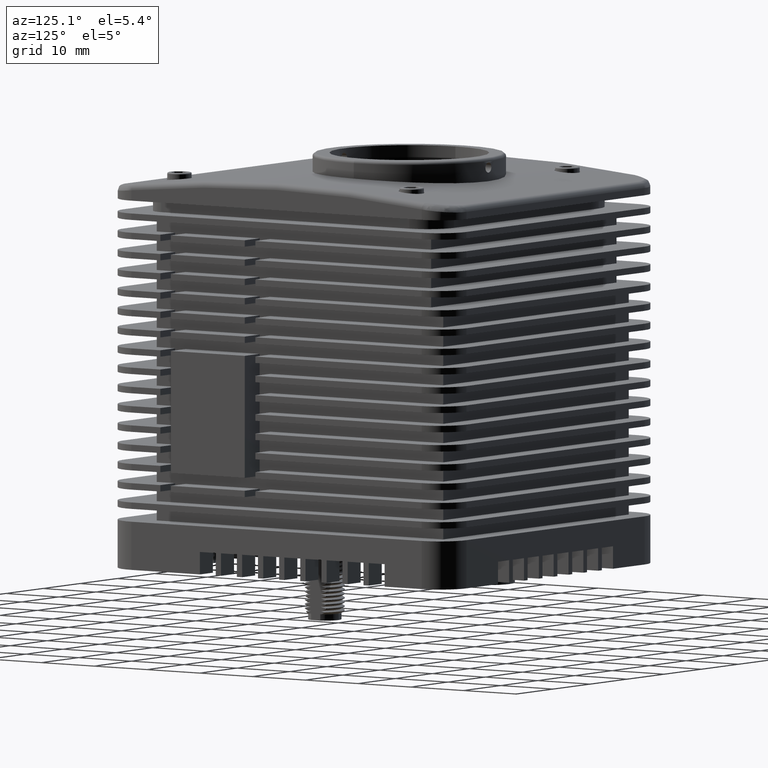
[diagram: clean part render]
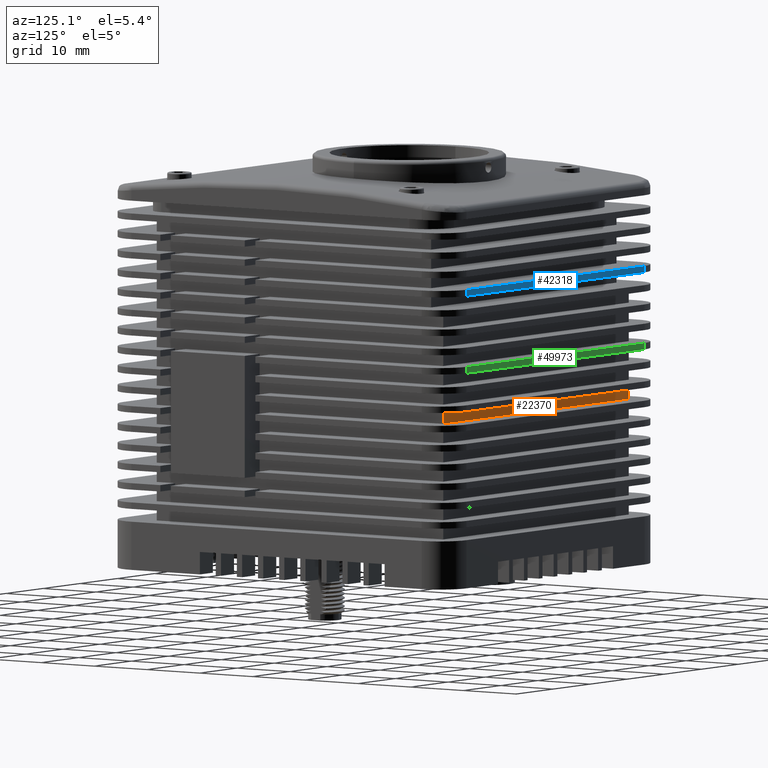
[diagram: same view with three faces highlighted in distinct colors, each labeled with its STEP entity id]
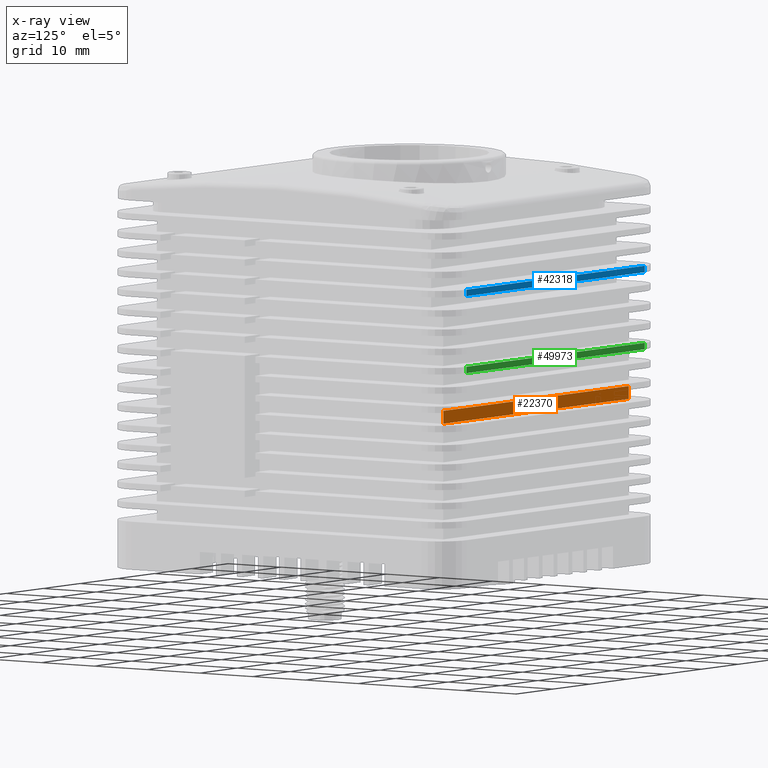
[diagram: x-ray of the same camera — body ghosted, the three highlighted faces saturated]
A machine part, auxiliary view with three faces highlighted in distinct colors.
The next image is the same camera in x-ray (body ghosted, the three faces saturated) — at least one of them is partly hidden behind the body in this view.
Their STEP definitions:

[orange] entity #22370 — the highlighted planar face has unit normal (0, -1, 0).
#2314 = ORIENTED_EDGE ( 'NONE', *, *, #32692, .T. ) ;
#2422 = DIRECTION ( 'NONE',  ( -0.0000000000000000000, -0.0000000000000000000, -1.000000000000000000 ) ) ;
#5288 = DIRECTION ( 'NONE',  ( 0.0000000000000000000, -0.0000000000000000000, -1.000000000000000000 ) ) ;
#6285 = CARTESIAN_POINT ( 'NONE',  ( 25.00000000000001800, 28.80000000000000100, 24.00000000000000000 ) ) ;
#8824 = VERTEX_POINT ( 'NONE', #38930 ) ;
#12756 = LINE ( 'NONE', #31363, #53727 ) ;
#18141 = VECTOR ( 'NONE', #39761, 1000.000000000000000 ) ;
#18844 = LINE ( 'NONE', #66563, #50625 ) ;
#20713 = VERTEX_POINT ( 'NONE', #6285 ) ;
#22370 = ADVANCED_FACE ( 'NONE', ( #61967 ), #69412, .F. ) ;
#27087 = CARTESIAN_POINT ( 'NONE',  ( 25.00000000000001800, 28.80000000000000100, 26.00000000000000400 ) ) ;
#28438 = AXIS2_PLACEMENT_3D ( 'NONE', #32032, #37396, #5288 ) ;
#29760 = VECTOR ( 'NONE', #32481, 1000.000000000000000 ) ;
#31363 = CARTESIAN_POINT ( 'NONE',  ( -25.00000000000000400, 28.80000000000000100, 26.00000000000000400 ) ) ;
#32032 = CARTESIAN_POINT ( 'NONE',  ( 25.00000000000001800, 28.80000000000000100, 26.00000000000000400 ) ) ;
#32481 = DIRECTION ( 'NONE',  ( -1.000000000000000000, 0.0000000000000000000, 0.0000000000000000000 ) ) ;
#32692 = EDGE_CURVE ( 'NONE', #20713, #63015, #35730, .T. ) ;
#33621 = EDGE_LOOP ( 'NONE', ( #2314, #42924, #38994, #54147 ) ) ;
#35730 = LINE ( 'NONE', #60997, #18141 ) ;
#36532 = EDGE_CURVE ( 'NONE', #8824, #63015, #12756, .T. ) ;
#37396 = DIRECTION ( 'NONE',  ( 0.0000000000000000000, -1.000000000000000000, 0.0000000000000000000 ) ) ;
#38930 = CARTESIAN_POINT ( 'NONE',  ( -25.00000000000000400, 28.80000000000000100, 26.00000000000000400 ) ) ;
#38994 = ORIENTED_EDGE ( 'NONE', *, *, #46416, .F. ) ;
#39761 = DIRECTION ( 'NONE',  ( -1.000000000000000000, 0.0000000000000000000, 0.0000000000000000000 ) ) ;
#42924 = ORIENTED_EDGE ( 'NONE', *, *, #36532, .F. ) ;
#43977 = LINE ( 'NONE', #27087, #29760 ) ;
#46416 = EDGE_CURVE ( 'NONE', #63627, #8824, #43977, .T. ) ;
#50625 = VECTOR ( 'NONE', #2422, 1000.000000000000000 ) ;
#52811 = DIRECTION ( 'NONE',  ( -0.0000000000000000000, -0.0000000000000000000, -1.000000000000000000 ) ) ;
#53727 = VECTOR ( 'NONE', #52811, 1000.000000000000000 ) ;
#54147 = ORIENTED_EDGE ( 'NONE', *, *, #57313, .T. ) ;
#56570 = CARTESIAN_POINT ( 'NONE',  ( 25.00000000000001800, 28.80000000000000100, 26.00000000000000400 ) ) ;
#57313 = EDGE_CURVE ( 'NONE', #63627, #20713, #18844, .T. ) ;
#60997 = CARTESIAN_POINT ( 'NONE',  ( 25.00000000000001800, 28.80000000000000100, 24.00000000000000000 ) ) ;
#61967 = FACE_OUTER_BOUND ( 'NONE', #33621, .T. ) ;
#63015 = VERTEX_POINT ( 'NONE', #67181 ) ;
#63627 = VERTEX_POINT ( 'NONE', #56570 ) ;
#66563 = CARTESIAN_POINT ( 'NONE',  ( 25.00000000000001800, 28.80000000000000100, 26.00000000000000400 ) ) ;
#67181 = CARTESIAN_POINT ( 'NONE',  ( -25.00000000000000400, 28.80000000000000100, 24.00000000000000000 ) ) ;
#69412 = PLANE ( 'NONE',  #28438 ) ;

[blue] entity #42318 — the highlighted planar face has unit normal (0, -1, 0).
#234 = EDGE_CURVE ( 'NONE', #68683, #5638, #42662, .T. ) ;
#271 = CARTESIAN_POINT ( 'NONE',  ( 23.99999999999996100, 32.50000000000000000, 30.00000000000000000 ) ) ;
#4256 = DIRECTION ( 'NONE',  ( 0.0000000000000000000, -1.000000000000000000, 0.0000000000000000000 ) ) ;
#5638 = VERTEX_POINT ( 'NONE', #66542 ) ;
#5922 = ORIENTED_EDGE ( 'NONE', *, *, #39736, .T. ) ;
#9149 = EDGE_CURVE ( 'NONE', #44064, #5638, #30898, .T. ) ;
#14163 = VECTOR ( 'NONE', #48862, 1000.000000000000000 ) ;
#15933 = LINE ( 'NONE', #271, #41008 ) ;
#15955 = ORIENTED_EDGE ( 'NONE', *, *, #9149, .F. ) ;
#16643 = VECTOR ( 'NONE', #58915, 1000.000000000000000 ) ;
#18994 = ORIENTED_EDGE ( 'NONE', *, *, #53813, .T. ) ;
#25665 = PLANE ( 'NONE',  #51626 ) ;
#29113 = ORIENTED_EDGE ( 'NONE', *, *, #234, .T. ) ;
#30898 = LINE ( 'NONE', #42873, #16643 ) ;
#33738 = DIRECTION ( 'NONE',  ( 1.000000000000000000, 0.0000000000000000000, 0.0000000000000000000 ) ) ;
#35100 = FACE_OUTER_BOUND ( 'NONE', #68106, .T. ) ;
#36380 = CARTESIAN_POINT ( 'NONE',  ( -23.99999999999996800, 32.50000000000000000, 30.00000000000000000 ) ) ;
#37751 = DIRECTION ( 'NONE',  ( -0.0000000000000000000, -0.0000000000000000000, -1.000000000000000000 ) ) ;
#37882 = CARTESIAN_POINT ( 'NONE',  ( -23.99999999999996800, 32.50000000000000000, 13.49999999999999800 ) ) ;
#39648 = VERTEX_POINT ( 'NONE', #58690 ) ;
#39736 = EDGE_CURVE ( 'NONE', #44064, #39648, #46316, .T. ) ;
#41008 = VECTOR ( 'NONE', #37751, 1000.000000000000000 ) ;
#41774 = DIRECTION ( 'NONE',  ( 0.0000000000000000000, -0.0000000000000000000, -1.000000000000000000 ) ) ;
#42318 = ADVANCED_FACE ( 'NONE', ( #35100 ), #25665, .F. ) ;
#42662 = LINE ( 'NONE', #37882, #14163 ) ;
#42873 = CARTESIAN_POINT ( 'NONE',  ( -23.99999999999996800, 32.50000000000000000, 30.00000000000000000 ) ) ;
#44064 = VERTEX_POINT ( 'NONE', #68320 ) ;
#44625 = VECTOR ( 'NONE', #33738, 1000.000000000000000 ) ;
#46316 = LINE ( 'NONE', #49620, #44625 ) ;
#48862 = DIRECTION ( 'NONE',  ( -1.000000000000000000, 0.0000000000000000000, 0.0000000000000000000 ) ) ;
#49620 = CARTESIAN_POINT ( 'NONE',  ( -23.99999999999996800, 32.50000000000000000, 14.49999999999999500 ) ) ;
#51626 = AXIS2_PLACEMENT_3D ( 'NONE', #36380, #4256, #41774 ) ;
#52285 = CARTESIAN_POINT ( 'NONE',  ( 23.99999999999996100, 32.50000000000000000, 13.49999999999999800 ) ) ;
#53813 = EDGE_CURVE ( 'NONE', #39648, #68683, #15933, .T. ) ;
#58690 = CARTESIAN_POINT ( 'NONE',  ( 23.99999999999996100, 32.50000000000000000, 14.49999999999999500 ) ) ;
#58915 = DIRECTION ( 'NONE',  ( -0.0000000000000000000, -0.0000000000000000000, -1.000000000000000000 ) ) ;
#66542 = CARTESIAN_POINT ( 'NONE',  ( -23.99999999999996800, 32.50000000000000000, 13.49999999999999800 ) ) ;
#68106 = EDGE_LOOP ( 'NONE', ( #18994, #29113, #15955, #5922 ) ) ;
#68320 = CARTESIAN_POINT ( 'NONE',  ( -23.99999999999996800, 32.50000000000000000, 14.49999999999999500 ) ) ;
#68683 = VERTEX_POINT ( 'NONE', #52285 ) ;

[green] entity #49973 — the highlighted planar face has unit normal (0, -1, 0).
#5928 = EDGE_CURVE ( 'NONE', #49986, #6804, #28627, .T. ) ;
#6804 = VERTEX_POINT ( 'NONE', #54061 ) ;
#7006 = CARTESIAN_POINT ( 'NONE',  ( -23.99999999999999600, 32.50000000000000000, 47.50000000000000000 ) ) ;
#9251 = CARTESIAN_POINT ( 'NONE',  ( -23.99999999999999600, 32.50000000000000000, 47.50000000000000000 ) ) ;
#12417 = DIRECTION ( 'NONE',  ( 0.0000000000000000000, -0.0000000000000000000, -1.000000000000000000 ) ) ;
#13467 = DIRECTION ( 'NONE',  ( 1.000000000000000000, 0.0000000000000000000, 0.0000000000000000000 ) ) ;
#15842 = ORIENTED_EDGE ( 'NONE', *, *, #60250, .F. ) ;
#20114 = ORIENTED_EDGE ( 'NONE', *, *, #5928, .F. ) ;
#21412 = FACE_OUTER_BOUND ( 'NONE', #33088, .T. ) ;
#22247 = LINE ( 'NONE', #66552, #50691 ) ;
#23218 = CARTESIAN_POINT ( 'NONE',  ( -23.99999999999999600, 32.50000000000000000, 17.00000000000000000 ) ) ;
#23463 = DIRECTION ( 'NONE',  ( -0.0000000000000000000, -0.0000000000000000000, -1.000000000000000000 ) ) ;
#28627 = LINE ( 'NONE', #41523, #41167 ) ;
#31973 = EDGE_CURVE ( 'NONE', #32326, #6804, #54979, .T. ) ;
#32326 = VERTEX_POINT ( 'NONE', #42854 ) ;
#32737 = VECTOR ( 'NONE', #41343, 1000.000000000000000 ) ;
#33088 = EDGE_LOOP ( 'NONE', ( #15842, #68642, #64727, #20114 ) ) ;
#41167 = VECTOR ( 'NONE', #57597, 1000.000000000000000 ) ;
#41343 = DIRECTION ( 'NONE',  ( -0.0000000000000000000, -0.0000000000000000000, -1.000000000000000000 ) ) ;
#41523 = CARTESIAN_POINT ( 'NONE',  ( -23.99999999999999600, 32.50000000000000000, 17.00000000000000000 ) ) ;
#41995 = AXIS2_PLACEMENT_3D ( 'NONE', #7006, #44516, #12417 ) ;
#42854 = CARTESIAN_POINT ( 'NONE',  ( 24.00000000000000000, 32.50000000000000000, 18.00000000000000400 ) ) ;
#44277 = PLANE ( 'NONE',  #41995 ) ;
#44516 = DIRECTION ( 'NONE',  ( 0.0000000000000000000, -1.000000000000000000, 0.0000000000000000000 ) ) ;
#48606 = LINE ( 'NONE', #9251, #32737 ) ;
#49973 = ADVANCED_FACE ( 'NONE', ( #21412 ), #44277, .F. ) ;
#49986 = VERTEX_POINT ( 'NONE', #23218 ) ;
#50691 = VECTOR ( 'NONE', #13467, 1000.000000000000000 ) ;
#50697 = VERTEX_POINT ( 'NONE', #56031 ) ;
#53323 = VECTOR ( 'NONE', #23463, 1000.000000000000000 ) ;
#54061 = CARTESIAN_POINT ( 'NONE',  ( 24.00000000000000000, 32.50000000000000000, 17.00000000000000000 ) ) ;
#54979 = LINE ( 'NONE', #67158, #53323 ) ;
#56031 = CARTESIAN_POINT ( 'NONE',  ( -23.99999999999999600, 32.50000000000000000, 18.00000000000000400 ) ) ;
#57597 = DIRECTION ( 'NONE',  ( 1.000000000000000000, 0.0000000000000000000, 0.0000000000000000000 ) ) ;
#60250 = EDGE_CURVE ( 'NONE', #50697, #49986, #48606, .T. ) ;
#64727 = ORIENTED_EDGE ( 'NONE', *, *, #31973, .T. ) ;
#66422 = EDGE_CURVE ( 'NONE', #50697, #32326, #22247, .T. ) ;
#66552 = CARTESIAN_POINT ( 'NONE',  ( -23.99999999999999600, 32.50000000000000000, 18.00000000000000400 ) ) ;
#67158 = CARTESIAN_POINT ( 'NONE',  ( 24.00000000000000000, 32.50000000000000000, 47.50000000000000000 ) ) ;
#68642 = ORIENTED_EDGE ( 'NONE', *, *, #66422, .T. ) ;